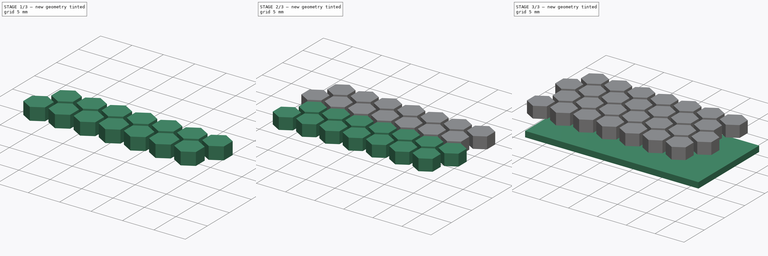
[diagram: build sequence overview — one tinted view per stage of 3, left to right]
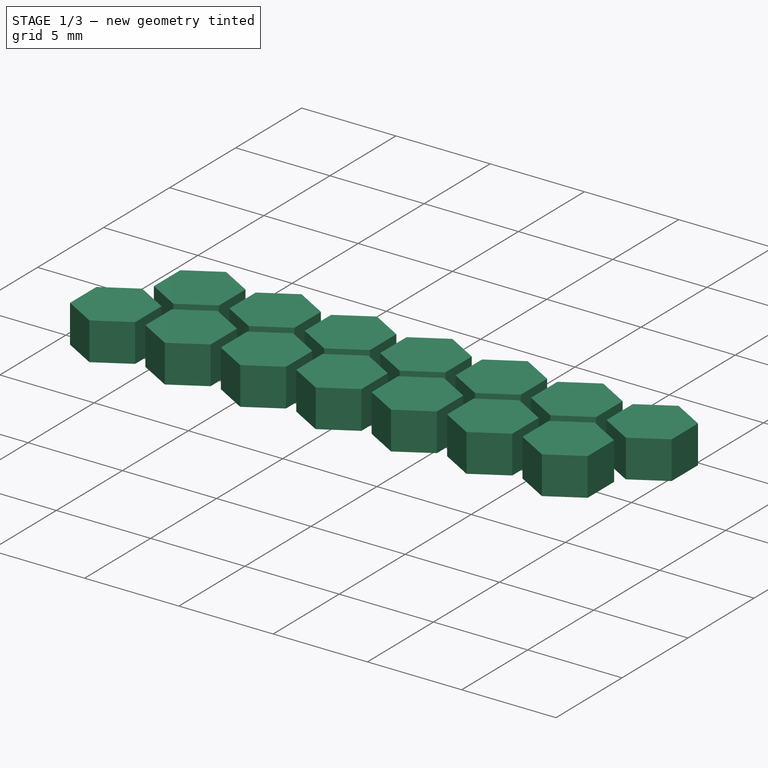
[diagram: stage 1 of 3 — iso view after this stage's code; geometry added in this stage tinted green]
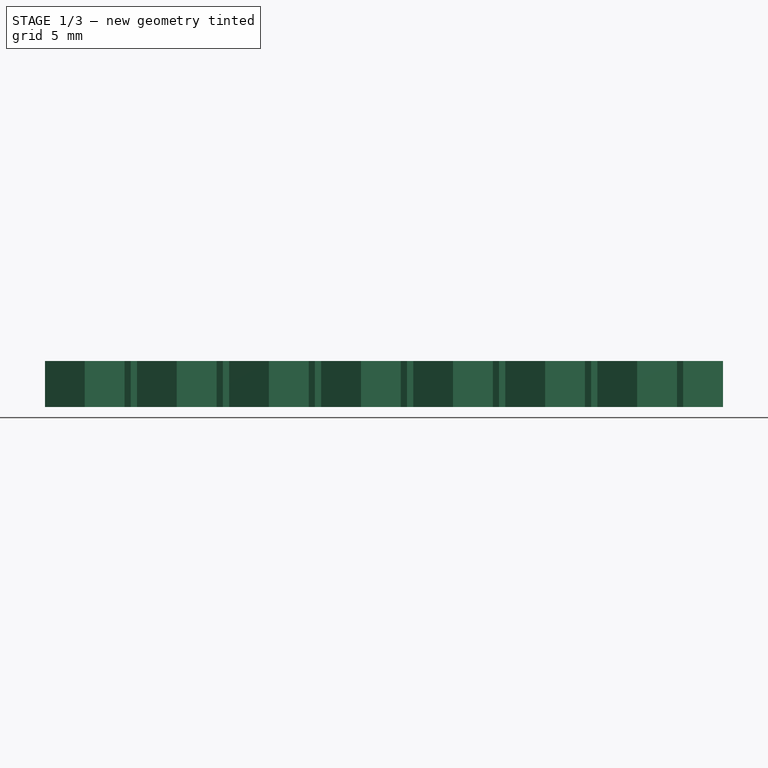
[diagram: stage 1 of 3 — front view after this stage's code; geometry added in this stage tinted green]
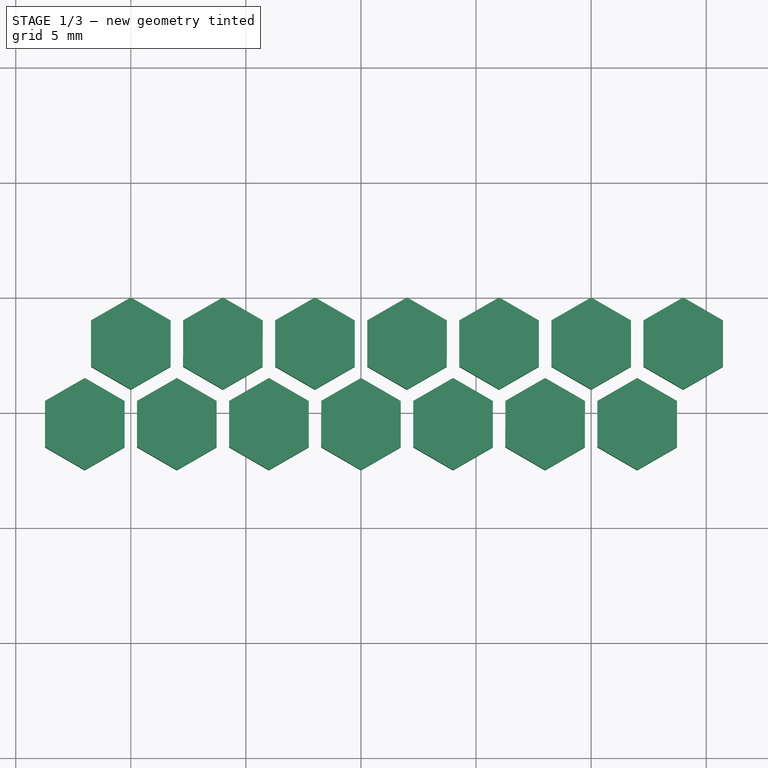
[diagram: stage 1 of 3 — top view after this stage's code; geometry added in this stage tinted green]
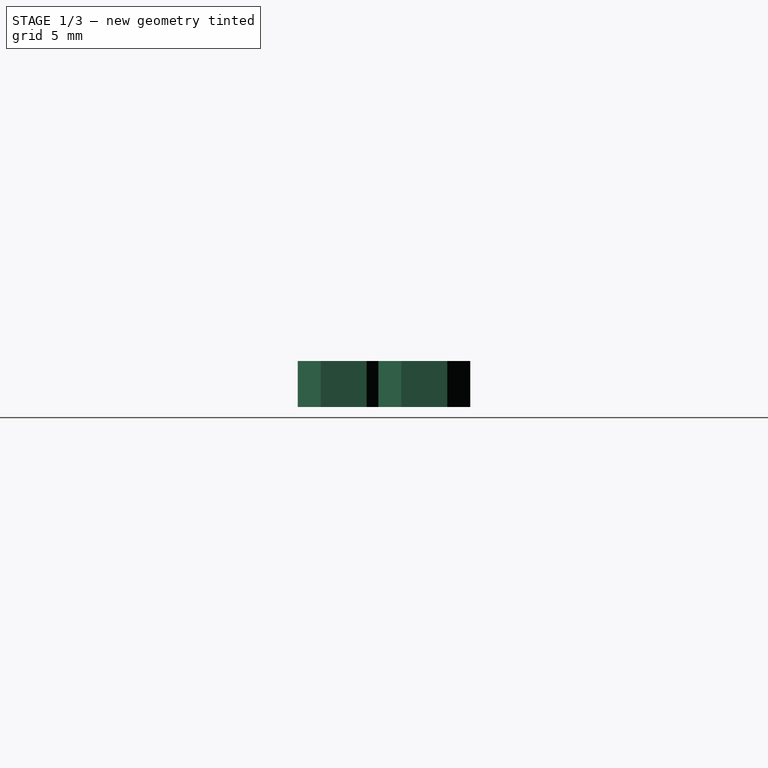
[diagram: stage 1 of 3 — right view after this stage's code; geometry added in this stage tinted green]
FCSTD DOCUMENT  (FreeCAD 0.18R14555 (Git shallow))
Label: honey-comb-small
License: All rights reserved
LicenseURL: http://en.wikipedia.org/wiki/All_rights_reserved
objects: Part::Feature×17, Part::MultiFuse×3, Part::Box×1, Sketcher::SketchObject×1, PartDesign::Pad×1, PartDesign::Body×1
note: 25 computed .brp shape members not serialized (recipe doc carries the construction recipe); baked Part::Feature solids carry a one-line shape summary decoded from their .brp

FEATURE [PartDesign::Body] Body
  Group = -> [Sketch,Pad]
  Origin = -> Origin
  Tip = -> Pad
FEATURE [Part::Feature] Body001
  shape: bbox 3.461 x 3.994 x 2 mm, 8 faces (baked)
FEATURE [Part::Feature] Body002
  Placement = pos=(4,0,0) rot=(0,0,1;0rad)
  shape: bbox 3.461 x 3.994 x 2 mm, 8 faces (baked)
FEATURE [Part::Feature] Body003
  Placement = pos=(8,0,0) rot=(0,0,1;0rad)
  shape: bbox 3.461 x 3.994 x 2 mm, 8 faces (baked)
FEATURE [Part::Feature] Body004
  Placement = pos=(12,0,0) rot=(0,0,1;0rad)
  shape: bbox 3.461 x 3.994 x 2 mm, 8 faces (baked)
FEATURE [Part::Feature] Body005
  Placement = pos=(16,0,0) rot=(0,0,1;0rad)
  shape: bbox 3.461 x 3.994 x 2 mm, 8 faces (baked)
FEATURE [Part::Feature] Body006
  Placement = pos=(20,0,0) rot=(0,0,1;0rad)
  shape: bbox 3.461 x 3.994 x 2 mm, 8 faces (baked)
FEATURE [Part::Feature] Body007
  Placement = pos=(24,0,0) rot=(0,0,1;0rad)
  shape: bbox 3.461 x 3.994 x 2 mm, 8 faces (baked)
FEATURE [Part::Feature] Body008
  Placement = pos=(-2,-3.5,0) rot=(0,0,1;0rad)
  shape: bbox 3.461 x 3.994 x 2 mm, 8 faces (baked)
FEATURE [Part::Feature] Body009
  Placement = pos=(2,-3.5,0) rot=(0,0,1;0rad)
  shape: bbox 3.461 x 3.994 x 2 mm, 8 faces (baked)
FEATURE [Part::Feature] Body010
  Placement = pos=(6,-3.5,0) rot=(0,0,1;0rad)
  shape: bbox 3.461 x 3.994 x 2 mm, 8 faces (baked)
FEATURE [Part::Feature] Body011
  Placement = pos=(10,-3.5,0) rot=(0,0,1;0rad)
  shape: bbox 3.461 x 3.994 x 2 mm, 8 faces (baked)
FEATURE [Part::Feature] Body012
  Placement = pos=(14,-3.5,0) rot=(0,0,1;0rad)
  shape: bbox 3.461 x 3.994 x 2 mm, 8 faces (baked)
FEATURE [Part::Feature] Body013
  Placement = pos=(18,-3.5,0) rot=(0,0,1;0rad)
  shape: bbox 3.461 x 3.994 x 2 mm, 8 faces (baked)
FEATURE [Part::Feature] Body014
  Placement = pos=(22,-3.5,0) rot=(0,0,1;0rad)
  shape: bbox 3.461 x 3.994 x 2 mm, 8 faces (baked)
FEATURE [Part::MultiFuse] Fusion
  Shapes = -> [Body001,Body002,Body003,Body004,Body005,Body006,Body007]
FEATURE [Part::Feature] Fusion001
  Placement = pos=(0,-7,0) rot=(0,0,1;0rad)
  shape: bbox 27.46 x 3.994 x 2 mm, 56 faces, 7 solids (baked)
FEATURE [Part::MultiFuse] Fusion002
  Shapes = -> [Body008,Body012,Body014,Body013,Body011,Body010,Body009]
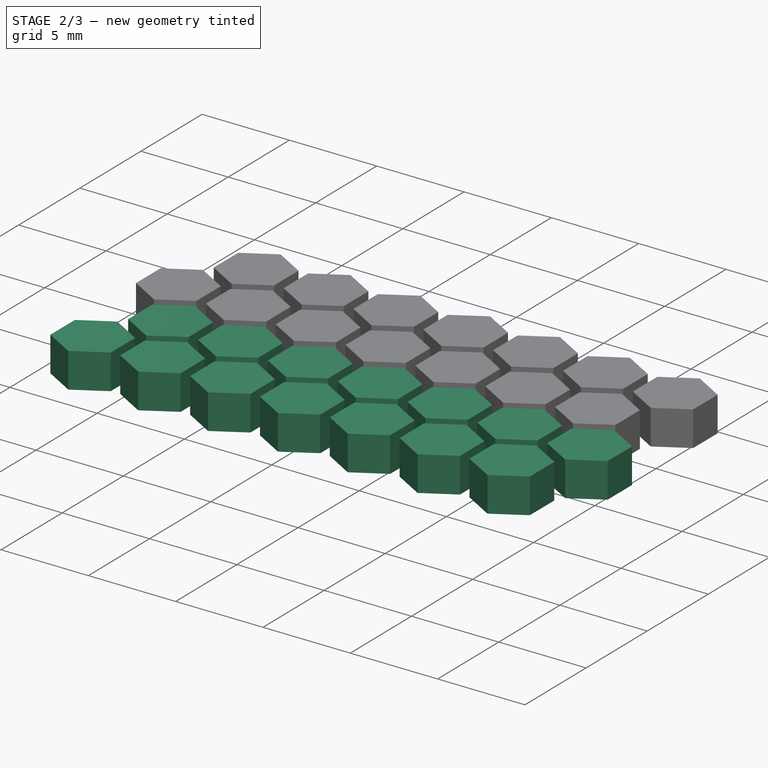
[diagram: stage 2 of 3 — iso view after this stage's code; geometry added in this stage tinted green]
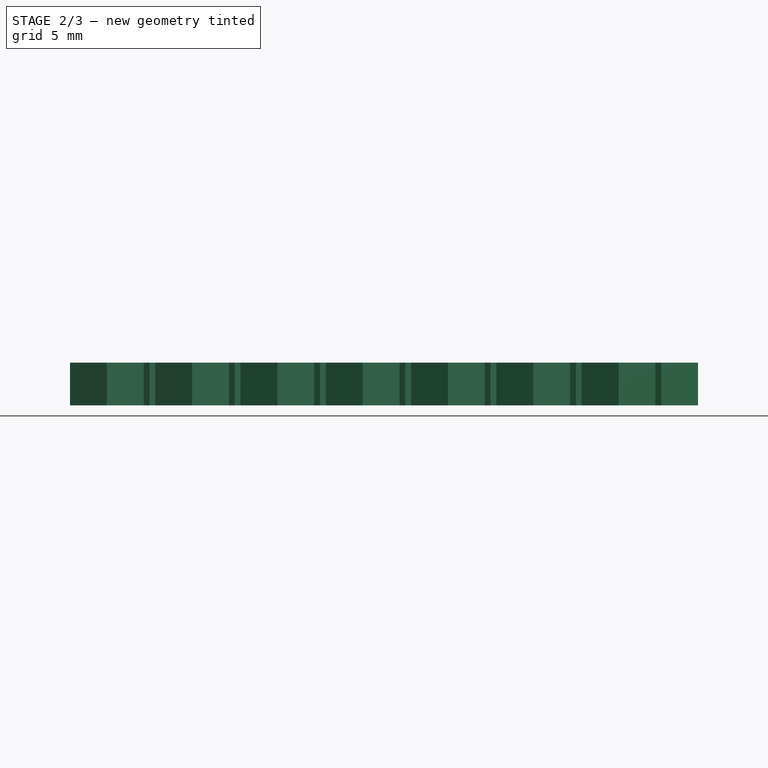
[diagram: stage 2 of 3 — front view after this stage's code; geometry added in this stage tinted green]
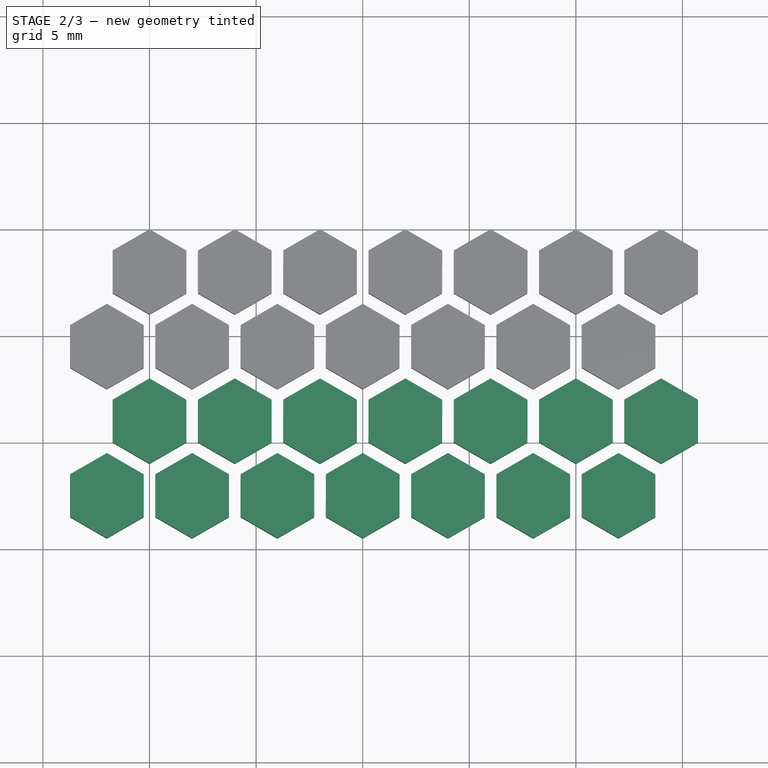
[diagram: stage 2 of 3 — top view after this stage's code; geometry added in this stage tinted green]
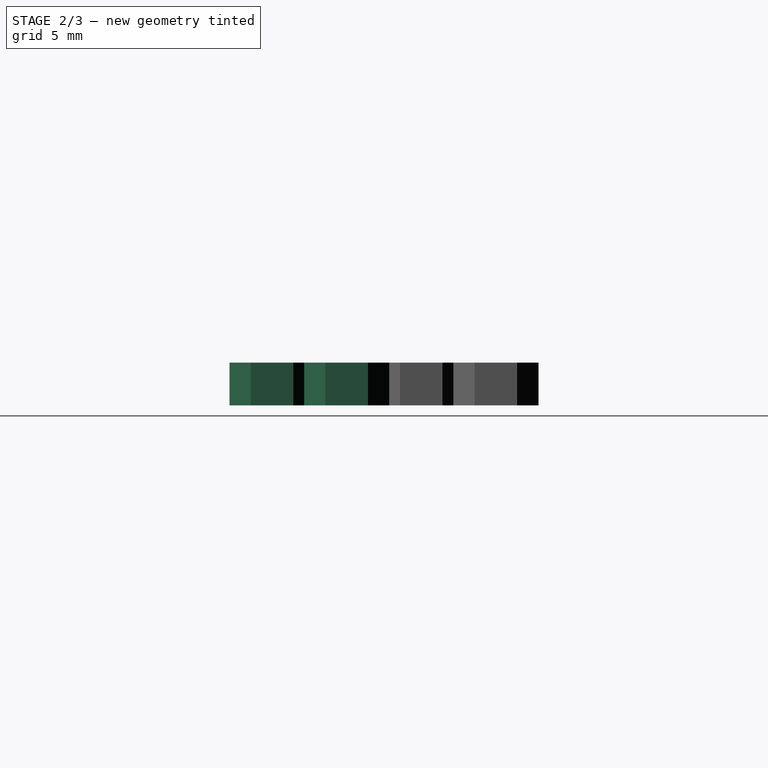
[diagram: stage 2 of 3 — right view after this stage's code; geometry added in this stage tinted green]
FEATURE [Part::Feature] Fusion002001  label="Fusion003"
  Placement = pos=(0,-7,0) rot=(0,0,1;0rad)
  shape: bbox 27.46 x 3.994 x 2 mm, 56 faces, 7 solids (baked)
FEATURE [Part::MultiFuse] Fusion002002
  Shapes = -> [Fusion002001,Fusion002,Fusion001,Fusion]
FEATURE [Part::Feature] Fusion002002001  label="Fusion002003"
  shape: bbox 29.46 x 14.49 x 2 mm, 224 faces, 28 solids (baked)
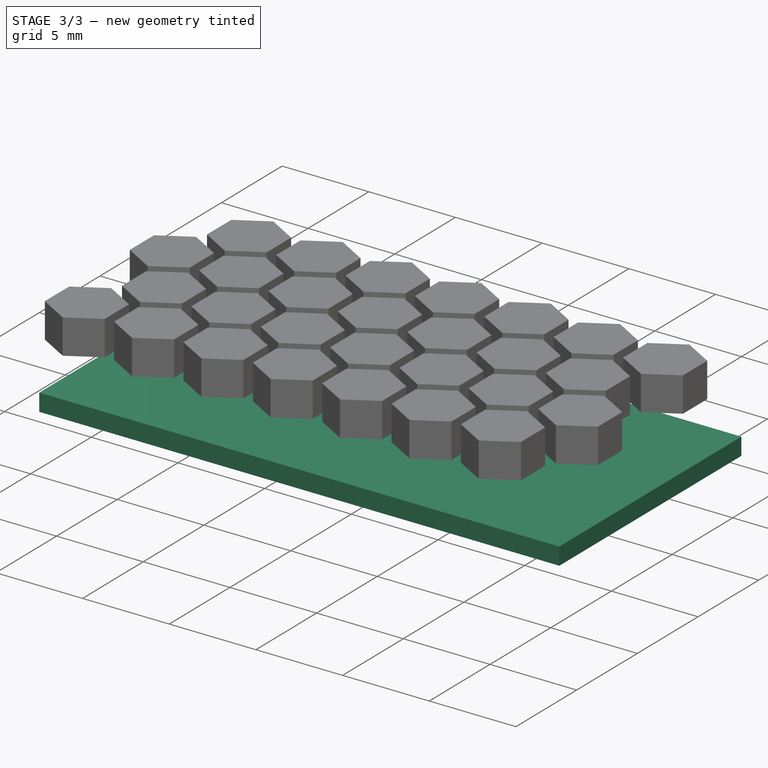
[diagram: stage 3 of 3 — iso view after this stage's code; geometry added in this stage tinted green]
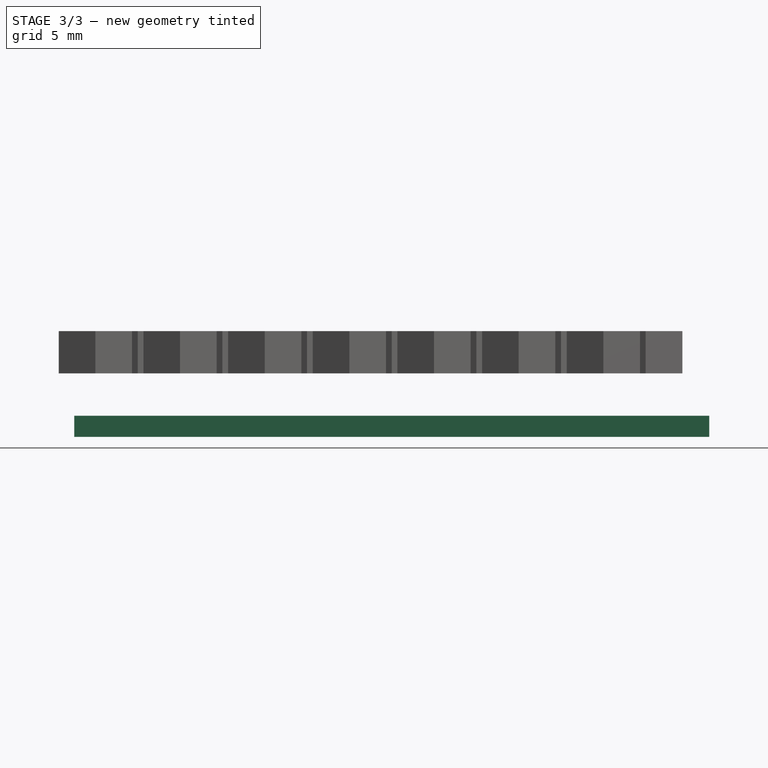
[diagram: stage 3 of 3 — front view after this stage's code; geometry added in this stage tinted green]
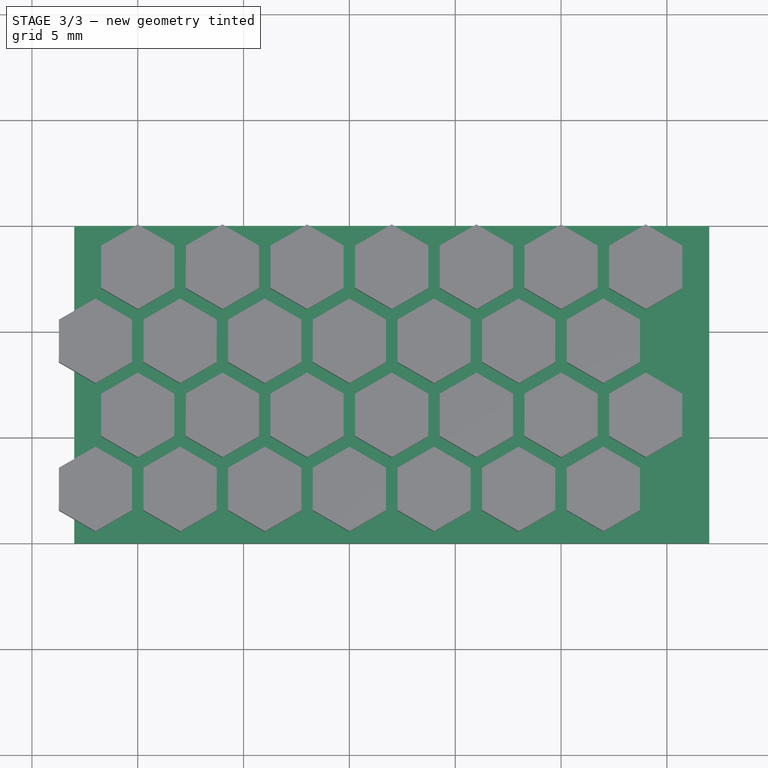
[diagram: stage 3 of 3 — top view after this stage's code; geometry added in this stage tinted green]
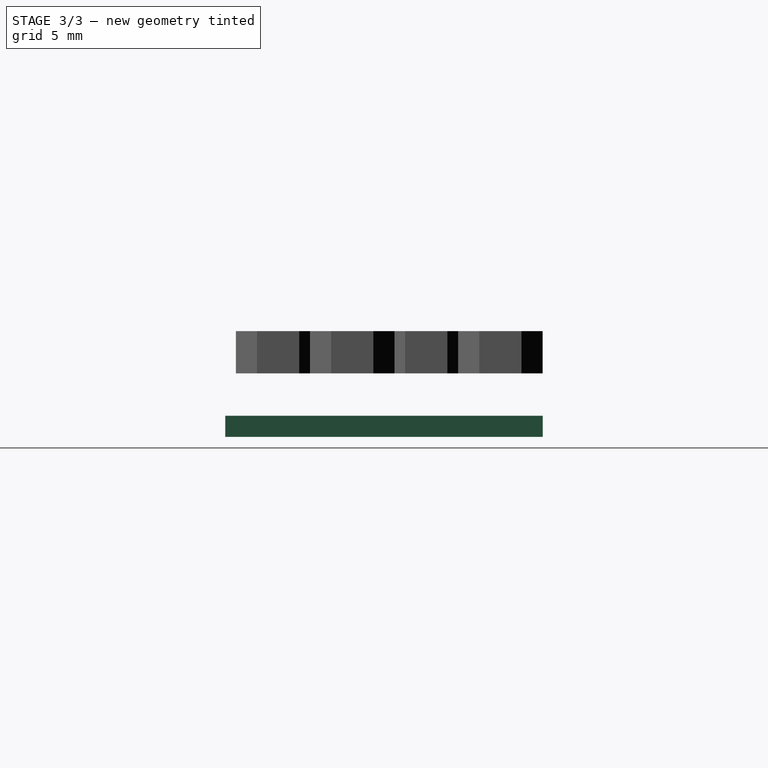
[diagram: stage 3 of 3 — right view after this stage's code; geometry added in this stage tinted green]
FEATURE [Part::Box] Box  label="Cube"
  AttacherType = Attacher::AttachEngine3D
  Height = 1
  Length = 30
  Placement = pos=(-3,0,-3) rot=(0,0,1;0rad)
  Width = 15
FEATURE [Sketcher::SketchObject] Sketch
  MapMode = 5
  Support = -> [XY_Plane]
  sketch-geometry (7):
    g0: LineSegment StartX=1.72846 StartY=12 StartZ=0 EndX=1.73025 EndY=13.9969 EndZ=0
    g1: LineSegment StartX=1.73025 StartY=13.9969 StartZ=0 EndX=0.0017979 EndY=14.9969 EndZ=0
    g2: LineSegment StartX=0.0017979 StartY=14.9969 StartZ=0 EndX=-1.72845 EndY=14 EndZ=0
    g3: LineSegment StartX=-1.72845 StartY=14 StartZ=0 EndX=-1.73025 EndY=12.0031 EndZ=0
    g4: LineSegment StartX=-1.73025 StartY=12.0031 StartZ=0 EndX=-0.0017979 EndY=11.0031 EndZ=0
    g5: LineSegment StartX=-0.0017979 StartY=11.0031 StartZ=0 EndX=1.72846 EndY=12 EndZ=0
    g6: Circle [constr] CenterX=0 CenterY=13 CenterZ=0 NormalX=0 NormalY=0 NormalZ=1 AngleXU=0 Radius=1.99689
  constraints (13):
    c: Coincident(g0,g1)
    c: Coincident(g1,g2)
    c: Coincident(g2,g3)
    c: Coincident(g3,g4)
    c: Coincident(g4,g5)
    c: Coincident(g5,g0)
    c: Equal(g0, g1-g5) x5
    c: PointOnObject(g0,g6)
    c: PointOnObject(g1,g6)
    c: PointOnObject(g2,g6)
    c: PointOnObject(g3,g6)
    c: PointOnObject(g4,g6)
    c: PointOnObject(g5,g6)
FEATURE [PartDesign::Pad] Pad
  Length = 2
  Length2 = 100
  Profile = -> Sketch
  Type = 0
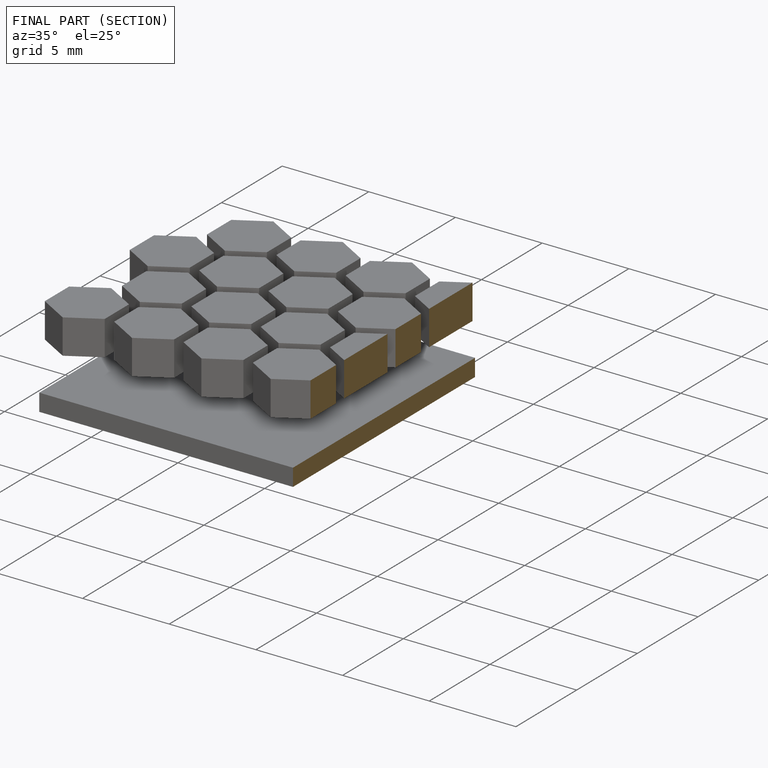
[diagram: finished part — half-section view (interior)]
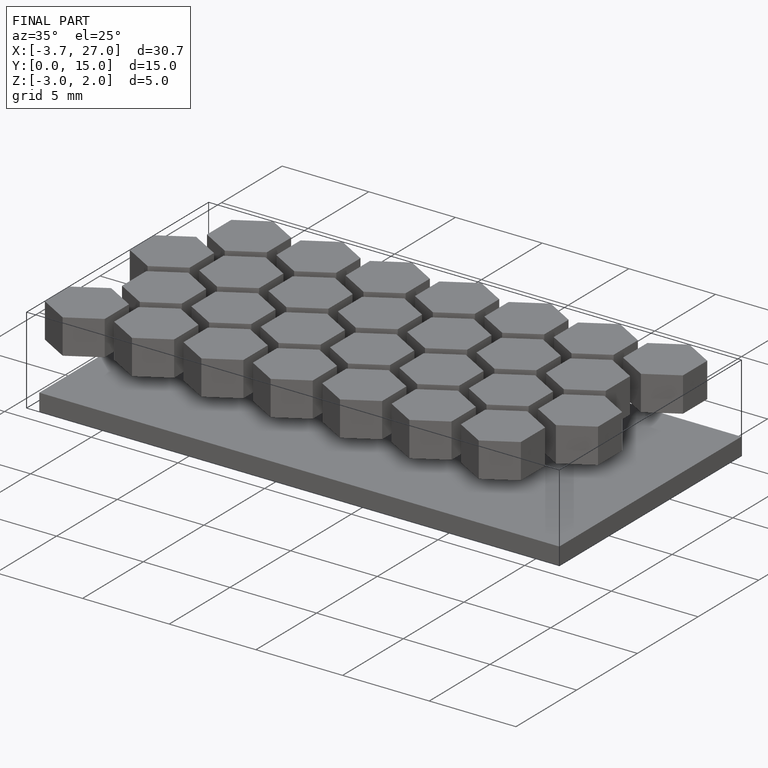
[diagram: finished part — iso view with bounding-box wireframe]
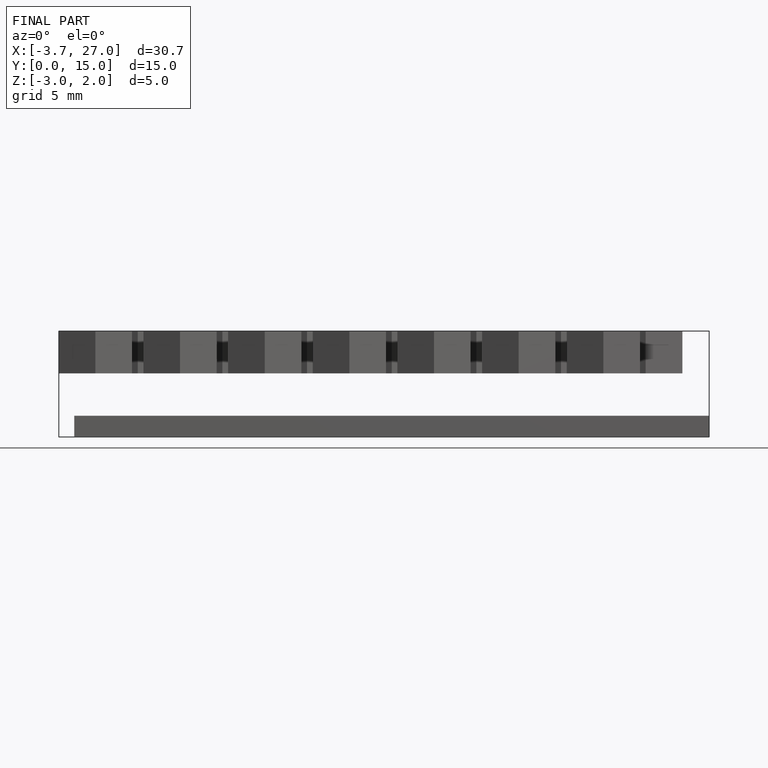
[diagram: finished part — front view with bounding-box wireframe]
